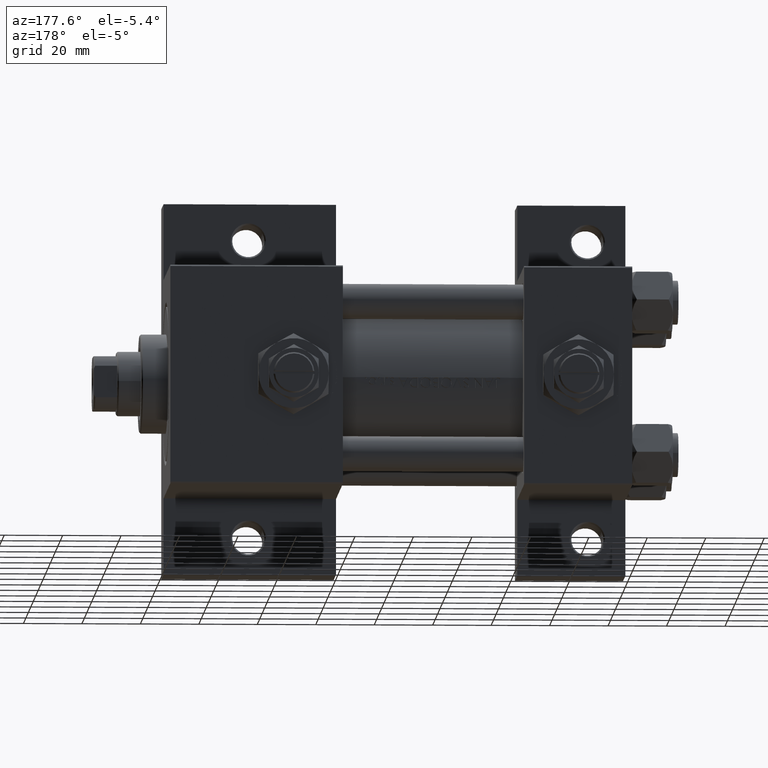
[diagram: clean part render]
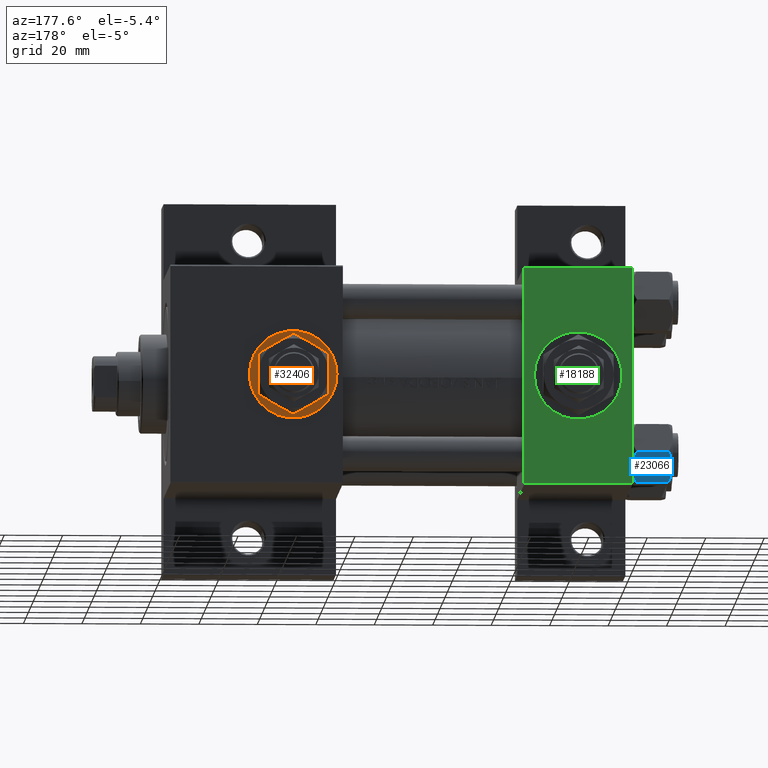
[diagram: same view with three faces highlighted in distinct colors, each labeled with its STEP entity id]
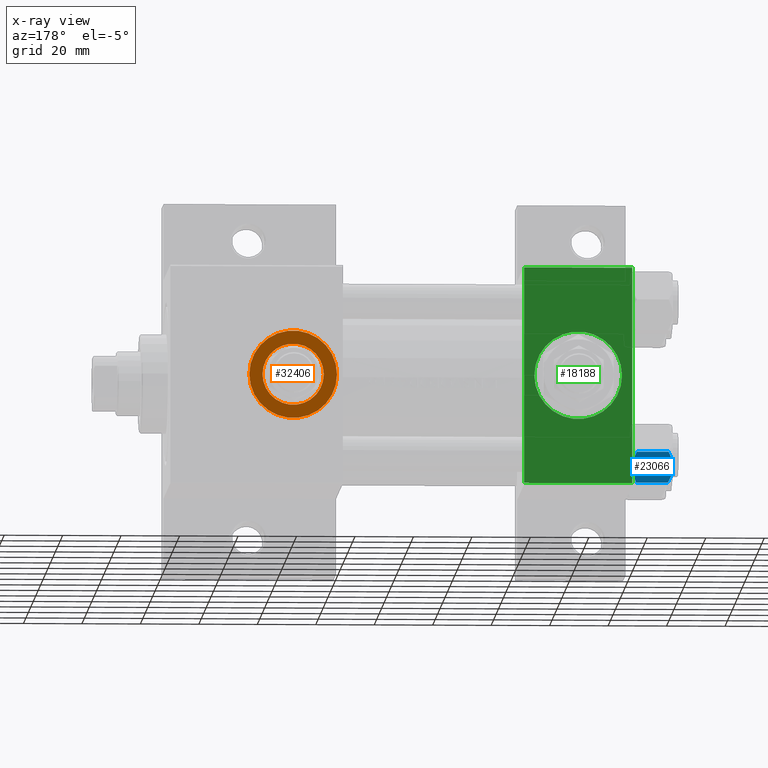
[diagram: x-ray of the same camera — body ghosted, the three highlighted faces saturated]
A machine part, auxiliary view with three faces highlighted in distinct colors.
The next image is the same camera in x-ray (body ghosted, the three faces saturated) — at least one of them is partly hidden behind the body in this view.
Their STEP definitions:

[orange] entity #32406 — the highlighted planar face has unit normal (0, 1, 0).
#711 = AXIS2_PLACEMENT_3D ( 'NONE', #23639, #45937, #19688 ) ;
#821 = PLANE ( 'NONE',  #711 ) ;
#2105 = DIRECTION ( 'NONE',  ( -0.000000000000000000, -0.000000000000000000, -1.000000000000000000 ) ) ;
#3921 = VERTEX_POINT ( 'NONE', #34794 ) ;
#4060 = FACE_OUTER_BOUND ( 'NONE', #30692, .T. ) ;
#4080 = AXIS2_PLACEMENT_3D ( 'NONE', #32203, #13396, #40859 ) ;
#4491 = VERTEX_POINT ( 'NONE', #10433 ) ;
#6175 = EDGE_CURVE ( 'NONE', #10834, #24093, #28293, .T. ) ;
#8263 = FACE_BOUND ( 'NONE', #12440, .T. ) ;
#8546 = DIRECTION ( 'NONE',  ( 1.000000000000000000, 0.000000000000000000, 0.000000000000000000 ) ) ;
#8971 = EDGE_CURVE ( 'NONE', #4491, #3921, #12551, .T. ) ;
#8985 = CARTESIAN_POINT ( 'NONE',  ( 131.0000000000000000, -6.938893903907226011E-15, 37.29999999999998295 ) ) ;
#10433 = CARTESIAN_POINT ( 'NONE',  ( 126.4800000000000040, -5.655464058400800522E-15, 37.29999999999998295 ) ) ;
#10834 = VERTEX_POINT ( 'NONE', #8985 ) ;
#11129 = DIRECTION ( 'NONE',  ( -0.000000000000000000, -0.000000000000000000, -1.000000000000000000 ) ) ;
#12440 = EDGE_LOOP ( 'NONE', ( #40218, #26918 ) ) ;
#12551 = CIRCLE ( 'NONE', #41818, 10.48000000000000398 ) ;
#13396 = DIRECTION ( 'NONE',  ( 0.000000000000000000, 0.000000000000000000, 1.000000000000000000 ) ) ;
#13971 = ORIENTED_EDGE ( 'NONE', *, *, #6175, .T. ) ;
#14134 = EDGE_CURVE ( 'NONE', #3921, #4491, #15920, .T. ) ;
#14858 = CARTESIAN_POINT ( 'NONE',  ( 116.0000000000000000, -6.938893903907226011E-15, 37.29999999999998295 ) ) ;
#15920 = CIRCLE ( 'NONE', #38817, 10.48000000000000398 ) ;
#17223 = AXIS2_PLACEMENT_3D ( 'NONE', #42739, #38311, #8546 ) ;
#17250 = DIRECTION ( 'NONE',  ( 1.000000000000000000, 0.000000000000000000, 0.000000000000000000 ) ) ;
#19140 = CIRCLE ( 'NONE', #4080, 15.00000000000000000 ) ;
#19688 = DIRECTION ( 'NONE',  ( 1.000000000000000000, 0.000000000000000000, -0.000000000000000000 ) ) ;
#20016 = ORIENTED_EDGE ( 'NONE', *, *, #42743, .T. ) ;
#23639 = CARTESIAN_POINT ( 'NONE',  ( 116.0000000000000000, -6.938893903907226011E-15, 37.29999999999998295 ) ) ;
#24093 = VERTEX_POINT ( 'NONE', #31828 ) ;
#26248 = DIRECTION ( 'NONE',  ( 1.000000000000000000, 0.000000000000000000, 0.000000000000000000 ) ) ;
#26918 = ORIENTED_EDGE ( 'NONE', *, *, #8971, .T. ) ;
#28293 = CIRCLE ( 'NONE', #17223, 15.00000000000000000 ) ;
#30692 = EDGE_LOOP ( 'NONE', ( #13971, #20016 ) ) ;
#31828 = CARTESIAN_POINT ( 'NONE',  ( 100.9999999999999858, -5.101923705186194844E-15, 37.29999999999998295 ) ) ;
#32203 = CARTESIAN_POINT ( 'NONE',  ( 116.0000000000000000, -6.938893903907226011E-15, 37.29999999999998295 ) ) ;
#32406 = ADVANCED_FACE ( 'NONE', ( #8263, #4060 ), #821, .T. ) ;
#32601 = CARTESIAN_POINT ( 'NONE',  ( 116.0000000000000000, -6.938893903907226011E-15, 37.29999999999998295 ) ) ;
#34794 = CARTESIAN_POINT ( 'NONE',  ( 105.5199999999999960, -6.938893903907226011E-15, 37.29999999999998295 ) ) ;
#38311 = DIRECTION ( 'NONE',  ( 0.000000000000000000, 0.000000000000000000, 1.000000000000000000 ) ) ;
#38817 = AXIS2_PLACEMENT_3D ( 'NONE', #14858, #11129, #26248 ) ;
#40218 = ORIENTED_EDGE ( 'NONE', *, *, #14134, .T. ) ;
#40859 = DIRECTION ( 'NONE',  ( 1.000000000000000000, 0.000000000000000000, 0.000000000000000000 ) ) ;
#41818 = AXIS2_PLACEMENT_3D ( 'NONE', #32601, #2105, #17250 ) ;
#42739 = CARTESIAN_POINT ( 'NONE',  ( 116.0000000000000000, -6.938893903907226011E-15, 37.29999999999998295 ) ) ;
#42743 = EDGE_CURVE ( 'NONE', #24093, #10834, #19140, .T. ) ;
#45937 = DIRECTION ( 'NONE',  ( 0.000000000000000000, 0.000000000000000000, 1.000000000000000000 ) ) ;

[blue] entity #23066 — the highlighted planar face has unit normal (0, -0.866, 0.5).
#192 = EDGE_CURVE ( 'NONE', #38115, #15772, #1835, .T. ) ;
#1235 = CARTESIAN_POINT ( 'NONE',  ( -8.715000000000005187, -5.031607595987585668, 0.000000000000000000 ) ) ;
#1242 = ORIENTED_EDGE ( 'NONE', *, *, #12056, .T. ) ;
#1835 = B_SPLINE_CURVE_WITH_KNOTS ( 'NONE', 3,
 ( #10767, #44942, #29601, #45425, #41455, #7990 ),
 .UNSPECIFIED., .F., .F.,
 ( 4, 2, 4 ),
 ( 0.006022845781655587240, 0.009013049135303635023, 0.01200325248895168541 ),
 .UNSPECIFIED. ) ;
#2908 = DIRECTION ( 'NONE',  ( -0.000000000000000000, -0.000000000000000000, 1.000000000000000000 ) ) ;
#3388 = ORIENTED_EDGE ( 'NONE', *, *, #8787, .F. ) ;
#3540 = CARTESIAN_POINT ( 'NONE',  ( -9.974696630283188981, -2.849749030213787560, -0.3002673809867339449 ) ) ;
#3759 = CARTESIAN_POINT ( 'NONE',  ( -5.810000000000000497, -10.06321519197517844, -12.44321519197518455 ) ) ;
#4271 = CARTESIAN_POINT ( 'NONE',  ( -9.729165168613651105, -3.275021996682077052, -0.1903979688073393906 ) ) ;
#4392 = LINE ( 'NONE', #7390, #41142 ) ;
#5683 = CARTESIAN_POINT ( 'NONE',  ( -11.61999999999999922, 6.301834029662224111E-15, -1.556784808024812117 ) ) ;
#7390 = CARTESIAN_POINT ( 'NONE',  ( -5.810000000000000497, -10.06321519197517844, -14.00000000000000000 ) ) ;
#7504 = CARTESIAN_POINT ( 'NONE',  ( -10.69859855102501101, -1.595914123792257389, -0.7141438259524618415 ) ) ;
#7990 = CARTESIAN_POINT ( 'NONE',  ( -5.810000000000000497, -10.06321519197517844, -1.556784808024815225 ) ) ;
#8351 = DIRECTION ( 'NONE',  ( -0.000000000000000000, -0.000000000000000000, 1.000000000000000000 ) ) ;
#8787 = EDGE_CURVE ( 'NONE', #48628, #33640, #31286, .T. ) ;
#8864 = CARTESIAN_POINT ( 'NONE',  ( -8.202333004087901003, -5.919572880271046778, -13.96005881939309390 ) ) ;
#9108 = CARTESIAN_POINT ( 'NONE',  ( -6.265545725125286403, -9.274186850887383926, -12.89876091710047135 ) ) ;
#9264 = B_SPLINE_CURVE_WITH_KNOTS ( 'NONE', 3,
 ( #20523, #9108, #16329, #17056, #32150, #8864, #16572, #28701 ),
 .UNSPECIFIED., .F., .F.,
 ( 4, 2, 2, 4 ),
 ( 2.544312114906334931E-07, 0.003011550106433545128, 0.004517197944044571388, 0.006022845781655597648 ),
 .UNSPECIFIED. ) ;
#9479 = CARTESIAN_POINT ( 'NONE',  ( -5.810000000000000497, -10.06321519197517844, -1.556784808024815225 ) ) ;
#10767 = CARTESIAN_POINT ( 'NONE',  ( -8.715000000000005187, -5.031607595987585668, 0.000000000000000000 ) ) ;
#12056 = EDGE_CURVE ( 'NONE', #16814, #15772, #4392, .T. ) ;
#12115 = CARTESIAN_POINT ( 'NONE',  ( -9.220295946303432189, -4.156409344131445138, -14.00000000000000711 ) ) ;
#12501 = EDGE_CURVE ( 'NONE', #33665, #38115, #42911, .T. ) ;
#13690 = AXIS2_PLACEMENT_3D ( 'NONE', #24460, #46991, #16060 ) ;
#15558 = EDGE_LOOP ( 'NONE', ( #24034, #1242, #23624, #44053, #27314, #3388 ) ) ;
#15772 = VERTEX_POINT ( 'NONE', #9479 ) ;
#16060 = DIRECTION ( 'NONE',  ( -0.4999999999999994449, 0.8660254037844389297, 0.000000000000000000 ) ) ;
#16329 = CARTESIAN_POINT ( 'NONE',  ( -6.731401448974990487, -8.467301068182912616, -13.28585617404753627 ) ) ;
#16442 = EDGE_CURVE ( 'NONE', #33640, #33665, #26630, .T. ) ;
#16572 = CARTESIAN_POINT ( 'NONE',  ( -8.460569896449618099, -5.472293462311855095, -14.00000000000000355 ) ) ;
#16814 = VERTEX_POINT ( 'NONE', #3759 ) ;
#17056 = CARTESIAN_POINT ( 'NONE',  ( -7.455303369716807182, -7.213466161761382445, -13.69973261901325934 ) ) ;
#18684 = CARTESIAN_POINT ( 'NONE',  ( -9.227666995912100489, -4.143642311704119230, -0.03994118060690584476 ) ) ;
#19582 = EDGE_CURVE ( 'NONE', #16814, #48628, #9264, .T. ) ;
#20523 = CARTESIAN_POINT ( 'NONE',  ( -5.810000000000000497, -10.06321519197517844, -12.44321519197518455 ) ) ;
#21741 = CARTESIAN_POINT ( 'NONE',  ( -8.715000000000005187, -5.031607595987585668, -14.00000000000000000 ) ) ;
#22396 = CARTESIAN_POINT ( 'NONE',  ( -11.61999999999999922, 6.301834029662224111E-15, -1.556784808024812117 ) ) ;
#22632 = CARTESIAN_POINT ( 'NONE',  ( -8.715000000000005187, -5.031607595987585668, 0.000000000000000000 ) ) ;
#23066 = ADVANCED_FACE ( 'NONE', ( #42293 ), #42778, .F. ) ;
#23624 = ORIENTED_EDGE ( 'NONE', *, *, #192, .F. ) ;
#23754 = CARTESIAN_POINT ( 'NONE',  ( -10.69662495661650325, -1.599332489581326122, -13.28854452935654962 ) ) ;
#24034 = ORIENTED_EDGE ( 'NONE', *, *, #19582, .F. ) ;
#24460 = CARTESIAN_POINT ( 'NONE',  ( -5.810000000000000497, -10.06321519197517844, -14.00000000000000000 ) ) ;
#26630 = LINE ( 'NONE', #41720, #39593 ) ;
#27314 = ORIENTED_EDGE ( 'NONE', *, *, #16442, .F. ) ;
#28701 = CARTESIAN_POINT ( 'NONE',  ( -8.715000000000005187, -5.031607595987585668, -14.00000000000000000 ) ) ;
#29601 = CARTESIAN_POINT ( 'NONE',  ( -7.713000053756306151, -6.767122412062949621, -0.1545239700039825748 ) ) ;
#30939 = CARTESIAN_POINT ( 'NONE',  ( -9.716999946243696229, -3.296092779912219495, -13.84547602999602134 ) ) ;
#31286 = B_SPLINE_CURVE_WITH_KNOTS ( 'NONE', 3,
 ( #38376, #12115, #30939, #23754, #46048, #38617 ),
 .UNSPECIFIED., .F., .F.,
 ( 4, 2, 4 ),
 ( 0.006022845781655597648, 0.009013049135303643697, 0.01200325248895169061 ),
 .UNSPECIFIED. ) ;
#32150 = CARTESIAN_POINT ( 'NONE',  ( -7.700834831386345058, -6.788193195293090731, -13.80960203119265906 ) ) ;
#33640 = VERTEX_POINT ( 'NONE', #41435 ) ;
#33665 = VERTEX_POINT ( 'NONE', #5683 ) ;
#33787 = CARTESIAN_POINT ( 'NONE',  ( -8.969430103550381617, -4.590921729663306472, 4.863663183134191758E-15 ) ) ;
#37505 = CARTESIAN_POINT ( 'NONE',  ( -11.16445427487471598, -0.7890283410877912962, -1.101239082899529764 ) ) ;
#38115 = VERTEX_POINT ( 'NONE', #1235 ) ;
#38376 = CARTESIAN_POINT ( 'NONE',  ( -8.715000000000005187, -5.031607595987585668, -14.00000000000000000 ) ) ;
#38617 = CARTESIAN_POINT ( 'NONE',  ( -11.61999999999999922, 6.270720075510426383E-15, -12.44321519197518811 ) ) ;
#39593 = VECTOR ( 'NONE', #2908, 1000.000000000000000 ) ;
#41142 = VECTOR ( 'NONE', #8351, 1000.000000000000000 ) ;
#41435 = CARTESIAN_POINT ( 'NONE',  ( -11.61999999999999922, 6.270720075510426383E-15, -12.44321519197518811 ) ) ;
#41455 = CARTESIAN_POINT ( 'NONE',  ( -6.265018354709778414, -9.275100283241449972, -1.101766453314953820 ) ) ;
#41720 = CARTESIAN_POINT ( 'NONE',  ( -11.61999999999999922, 6.288644352490894150E-15, -14.00000000000000000 ) ) ;
#42293 = FACE_OUTER_BOUND ( 'NONE', #15558, .T. ) ;
#42778 = PLANE ( 'NONE',  #13690 ) ;
#42911 = B_SPLINE_CURVE_WITH_KNOTS ( 'NONE', 3,
 ( #22396, #37505, #7504, #3540, #4271, #18684, #33787, #22632 ),
 .UNSPECIFIED., .F., .F.,
 ( 4, 2, 2, 4 ),
 ( 2.544312114899214560E-07, 0.003011550106433539924, 0.004517197944044563582, 0.006022845781655587240 ),
 .UNSPECIFIED. ) ;
#44053 = ORIENTED_EDGE ( 'NONE', *, *, #12501, .F. ) ;
#44942 = CARTESIAN_POINT ( 'NONE',  ( -8.209704053696569304, -5.906805847843719981, 4.553649124439113890E-15 ) ) ;
#45425 = CARTESIAN_POINT ( 'NONE',  ( -6.733375043383497349, -8.463882702393840773, -0.7114554706434500497 ) ) ;
#46048 = CARTESIAN_POINT ( 'NONE',  ( -11.16498164529022041, -0.7881149087337220305, -12.89823354668505040 ) ) ;
#46991 = DIRECTION ( 'NONE',  ( 0.8660254037844390407, 0.4999999999999995004, 0.000000000000000000 ) ) ;
#48628 = VERTEX_POINT ( 'NONE', #21741 ) ;

[green] entity #18188 — the highlighted planar face has unit normal (0, -1, -0).
#1380 = DIRECTION ( 'NONE',  ( 0.000000000000000000, 9.251858538542971581E-17, -1.000000000000000000 ) ) ;
#2785 = VERTEX_POINT ( 'NONE', #19986 ) ;
#3383 = LINE ( 'NONE', #18522, #41748 ) ;
#4869 = CARTESIAN_POINT ( 'NONE',  ( 37.00000000000000000, 37.49999999999999289, 37.50000000000000000 ) ) ;
#6016 = EDGE_CURVE ( 'NONE', #27915, #23391, #3383, .T. ) ;
#6729 = CARTESIAN_POINT ( 'NONE',  ( 18.50000000000000000, -5.204170427930421283E-15, 37.50000000000000000 ) ) ;
#8586 = FACE_BOUND ( 'NONE', #24312, .T. ) ;
#8831 = DIRECTION ( 'NONE',  ( 0.000000000000000000, 1.000000000000000000, 9.251858538542971581E-17 ) ) ;
#9726 = VERTEX_POINT ( 'NONE', #49003 ) ;
#12537 = EDGE_CURVE ( 'NONE', #23038, #9726, #29325, .T. ) ;
#12754 = EDGE_CURVE ( 'NONE', #9726, #23038, #26952, .T. ) ;
#12973 = CARTESIAN_POINT ( 'NONE',  ( 0.000000000000000000, -37.00000000000000711, 37.49999999999999289 ) ) ;
#15215 = DIRECTION ( 'NONE',  ( 1.000000000000000000, 0.000000000000000000, 0.000000000000000000 ) ) ;
#15337 = CARTESIAN_POINT ( 'NONE',  ( 3.499999999999997780, -3.367200229209391300E-15, 37.50000000000000000 ) ) ;
#15699 = DIRECTION ( 'NONE',  ( 0.000000000000000000, 0.000000000000000000, 1.000000000000000000 ) ) ;
#15813 = FACE_OUTER_BOUND ( 'NONE', #18680, .T. ) ;
#17095 = ORIENTED_EDGE ( 'NONE', *, *, #6016, .T. ) ;
#17334 = CARTESIAN_POINT ( 'NONE',  ( 37.00000000000000000, 37.49999999999999289, 37.50000000000000000 ) ) ;
#17960 = EDGE_CURVE ( 'NONE', #25576, #23391, #25022, .T. ) ;
#18152 = ORIENTED_EDGE ( 'NONE', *, *, #28914, .T. ) ;
#18188 = ADVANCED_FACE ( 'NONE', ( #8586, #15813 ), #46494, .F. ) ;
#18522 = CARTESIAN_POINT ( 'NONE',  ( 37.00000000000000000, -37.00000000000000711, 37.49999999999999289 ) ) ;
#18680 = EDGE_LOOP ( 'NONE', ( #38698, #17095, #41059, #18152 ) ) ;
#18998 = CARTESIAN_POINT ( 'NONE',  ( 0.000000000000000000, 37.49999999999999289, 37.50000000000000000 ) ) ;
#19986 = CARTESIAN_POINT ( 'NONE',  ( 0.000000000000000000, 36.99999999999999289, 37.50000000000000000 ) ) ;
#20236 = ORIENTED_EDGE ( 'NONE', *, *, #12537, .F. ) ;
#21617 = DIRECTION ( 'NONE',  ( 0.000000000000000000, 0.000000000000000000, 1.000000000000000000 ) ) ;
#22778 = VECTOR ( 'NONE', #41774, 1000.000000000000000 ) ;
#22944 = DIRECTION ( 'NONE',  ( 0.000000000000000000, -1.000000000000000000, -9.251858538542971581E-17 ) ) ;
#23038 = VERTEX_POINT ( 'NONE', #15337 ) ;
#23391 = VERTEX_POINT ( 'NONE', #33299 ) ;
#24312 = EDGE_LOOP ( 'NONE', ( #34612, #20236 ) ) ;
#25022 = LINE ( 'NONE', #17334, #25444 ) ;
#25444 = VECTOR ( 'NONE', #44315, 1000.000000000000000 ) ;
#25576 = VERTEX_POINT ( 'NONE', #30938 ) ;
#26445 = LINE ( 'NONE', #37822, #22778 ) ;
#26952 = CIRCLE ( 'NONE', #33282, 15.00000000000000355 ) ;
#27915 = VERTEX_POINT ( 'NONE', #12973 ) ;
#28914 = EDGE_CURVE ( 'NONE', #25576, #2785, #26445, .T. ) ;
#29325 = CIRCLE ( 'NONE', #36417, 15.00000000000000355 ) ;
#30938 = CARTESIAN_POINT ( 'NONE',  ( 37.00000000000000000, 36.99999999999999289, 37.50000000000000000 ) ) ;
#31741 = AXIS2_PLACEMENT_3D ( 'NONE', #4869, #1380, #8831 ) ;
#33282 = AXIS2_PLACEMENT_3D ( 'NONE', #6729, #21617, #43649 ) ;
#33299 = CARTESIAN_POINT ( 'NONE',  ( 37.00000000000000000, -37.00000000000000711, 37.49999999999999289 ) ) ;
#34513 = CARTESIAN_POINT ( 'NONE',  ( 18.50000000000000000, -5.204170427930421283E-15, 37.50000000000000000 ) ) ;
#34612 = ORIENTED_EDGE ( 'NONE', *, *, #12754, .F. ) ;
#36417 = AXIS2_PLACEMENT_3D ( 'NONE', #34513, #15699, #15215 ) ;
#37426 = VECTOR ( 'NONE', #22944, 1000.000000000000000 ) ;
#37822 = CARTESIAN_POINT ( 'NONE',  ( 0.000000000000000000, 36.99999999999999289, 37.50000000000000000 ) ) ;
#38698 = ORIENTED_EDGE ( 'NONE', *, *, #41941, .T. ) ;
#41059 = ORIENTED_EDGE ( 'NONE', *, *, #17960, .F. ) ;
#41748 = VECTOR ( 'NONE', #41767, 1000.000000000000000 ) ;
#41767 = DIRECTION ( 'NONE',  ( 1.000000000000000000, 0.000000000000000000, 0.000000000000000000 ) ) ;
#41774 = DIRECTION ( 'NONE',  ( -1.000000000000000000, 0.000000000000000000, 0.000000000000000000 ) ) ;
#41941 = EDGE_CURVE ( 'NONE', #2785, #27915, #48968, .T. ) ;
#43649 = DIRECTION ( 'NONE',  ( 1.000000000000000000, 0.000000000000000000, 0.000000000000000000 ) ) ;
#44315 = DIRECTION ( 'NONE',  ( 0.000000000000000000, -1.000000000000000000, -9.251858538542971581E-17 ) ) ;
#46494 = PLANE ( 'NONE',  #31741 ) ;
#48968 = LINE ( 'NONE', #18998, #37426 ) ;
#49003 = CARTESIAN_POINT ( 'NONE',  ( 33.50000000000000000, -5.204170427930421283E-15, 37.50000000000000000 ) ) ;